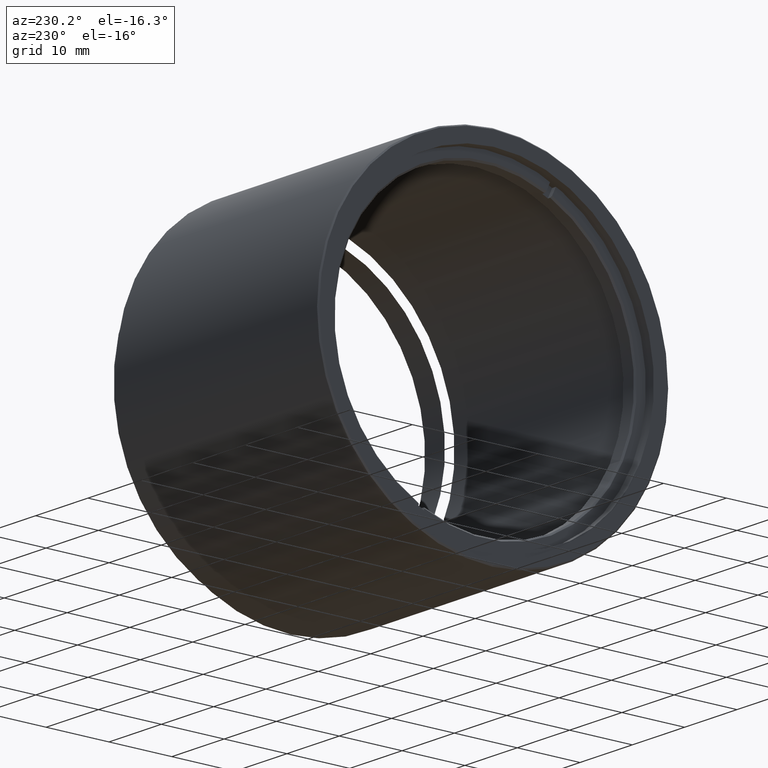
[diagram: clean part render]
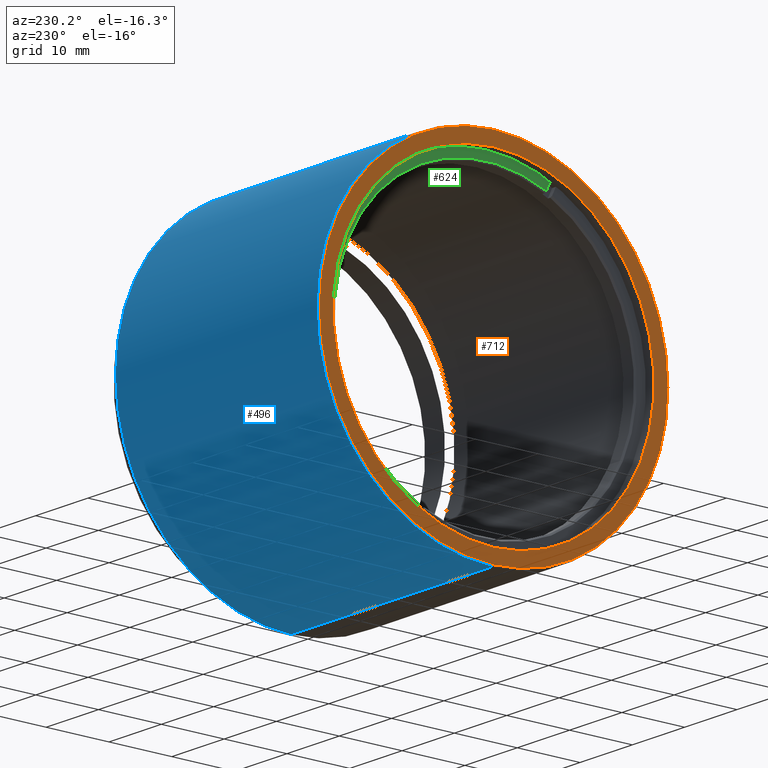
[diagram: same view with three faces highlighted in distinct colors, each labeled with its STEP entity id]
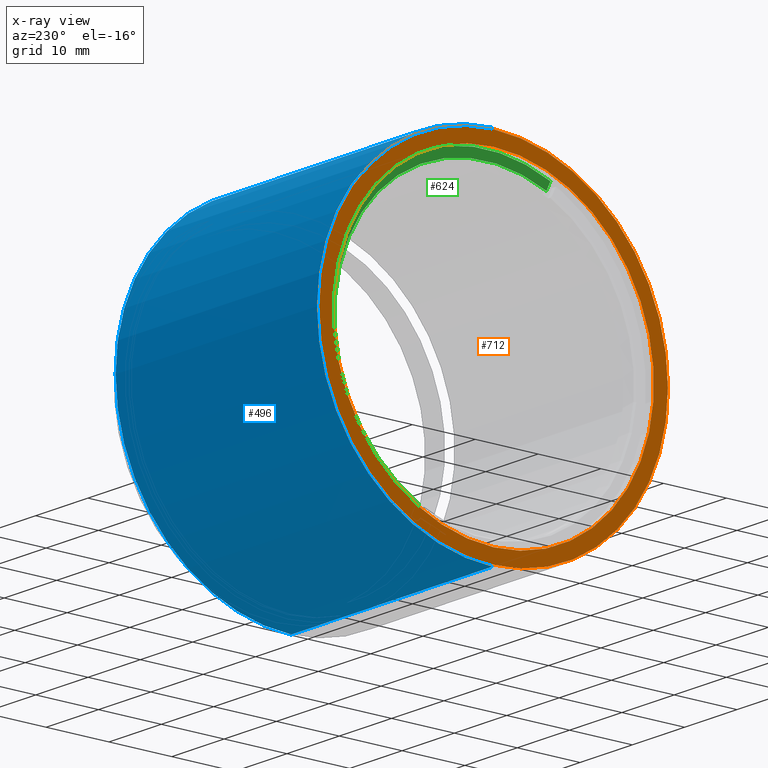
[diagram: x-ray of the same camera — body ghosted, the three highlighted faces saturated]
A machine part, auxiliary view with three faces highlighted in distinct colors.
The next image is the same camera in x-ray (body ghosted, the three faces saturated) — at least one of them is partly hidden behind the body in this view.
Their STEP definitions:

[orange] entity #712 — the highlighted planar face has unit normal (-1, 0, 0).
#18 = DIRECTION ( 'NONE',  ( -1.000000000000000000, 0.000000000000000000, 0.000000000000000000 ) ) ;
#67 = FACE_BOUND ( 'NONE', #795, .T. ) ;
#74 = PLANE ( 'NONE',  #1119 ) ;
#80 = CARTESIAN_POINT ( 'NONE',  ( -35.37400000000001654, -20.10857142857141966, 0.000000000000000000 ) ) ;
#110 = VERTEX_POINT ( 'NONE', #611 ) ;
#135 = CARTESIAN_POINT ( 'NONE',  ( -35.37400000000001654, -20.10857142857141966, -27.74999999999997868 ) ) ;
#221 = DIRECTION ( 'NONE',  ( 0.000000000000000000, 0.000000000000000000, 1.000000000000000000 ) ) ;
#289 = EDGE_CURVE ( 'NONE', #1065, #1176, #750, .T. ) ;
#337 = DIRECTION ( 'NONE',  ( -1.000000000000000000, 0.000000000000000000, 0.000000000000000000 ) ) ;
#373 = CARTESIAN_POINT ( 'NONE',  ( -35.37400000000001654, -20.10857142857141966, 0.000000000000000000 ) ) ;
#405 = CARTESIAN_POINT ( 'NONE',  ( -35.37400000000001654, -20.10857142857141611, 27.74999999999997868 ) ) ;
#453 = ORIENTED_EDGE ( 'NONE', *, *, #289, .T. ) ;
#592 = ORIENTED_EDGE ( 'NONE', *, *, #1210, .F. ) ;
#608 = DIRECTION ( 'NONE',  ( -1.000000000000000000, 0.000000000000000000, 0.000000000000000000 ) ) ;
#611 = CARTESIAN_POINT ( 'NONE',  ( -35.37400000000001654, -20.10857142857141966, -25.52499999999999858 ) ) ;
#657 = CIRCLE ( 'NONE', #1271, 27.74999999999997868 ) ;
#670 = CARTESIAN_POINT ( 'NONE',  ( -35.37400000000001654, -20.10857142857141966, 0.000000000000000000 ) ) ;
#705 = DIRECTION ( 'NONE',  ( -1.000000000000000000, 0.000000000000000000, 0.000000000000000000 ) ) ;
#712 = ADVANCED_FACE ( 'NONE', ( #1130, #67 ), #74, .T. ) ;
#750 = CIRCLE ( 'NONE', #897, 27.74999999999997868 ) ;
#756 = ORIENTED_EDGE ( 'NONE', *, *, #1358, .F. ) ;
#784 = DIRECTION ( 'NONE',  ( -1.000000000000000000, 0.000000000000000000, 0.000000000000000000 ) ) ;
#795 = EDGE_LOOP ( 'NONE', ( #756, #592 ) ) ;
#830 = CARTESIAN_POINT ( 'NONE',  ( -35.37400000000001654, -20.10857142857141966, 0.000000000000000000 ) ) ;
#858 = CIRCLE ( 'NONE', #1571, 25.52499999999999858 ) ;
#891 = DIRECTION ( 'NONE',  ( 0.000000000000000000, 0.000000000000000000, 1.000000000000000000 ) ) ;
#897 = AXIS2_PLACEMENT_3D ( 'NONE', #1023, #18, #891 ) ;
#961 = DIRECTION ( 'NONE',  ( 0.000000000000000000, 0.000000000000000000, 1.000000000000000000 ) ) ;
#964 = ORIENTED_EDGE ( 'NONE', *, *, #1396, .T. ) ;
#973 = DIRECTION ( 'NONE',  ( 0.000000000000000000, 0.000000000000000000, 1.000000000000000000 ) ) ;
#1023 = CARTESIAN_POINT ( 'NONE',  ( -35.37400000000001654, -20.10857142857141966, 0.000000000000000000 ) ) ;
#1034 = DIRECTION ( 'NONE',  ( 0.000000000000000000, 0.000000000000000000, 1.000000000000000000 ) ) ;
#1065 = VERTEX_POINT ( 'NONE', #405 ) ;
#1119 = AXIS2_PLACEMENT_3D ( 'NONE', #373, #608, #973 ) ;
#1130 = FACE_OUTER_BOUND ( 'NONE', #1457, .T. ) ;
#1134 = CARTESIAN_POINT ( 'NONE',  ( -35.37400000000001654, -20.10857142857141611, 25.52499999999999858 ) ) ;
#1176 = VERTEX_POINT ( 'NONE', #135 ) ;
#1192 = AXIS2_PLACEMENT_3D ( 'NONE', #830, #337, #961 ) ;
#1210 = EDGE_CURVE ( 'NONE', #1250, #110, #858, .T. ) ;
#1250 = VERTEX_POINT ( 'NONE', #1134 ) ;
#1271 = AXIS2_PLACEMENT_3D ( 'NONE', #80, #705, #221 ) ;
#1358 = EDGE_CURVE ( 'NONE', #110, #1250, #1518, .T. ) ;
#1396 = EDGE_CURVE ( 'NONE', #1176, #1065, #657, .T. ) ;
#1457 = EDGE_LOOP ( 'NONE', ( #964, #453 ) ) ;
#1518 = CIRCLE ( 'NONE', #1192, 25.52499999999999858 ) ;
#1571 = AXIS2_PLACEMENT_3D ( 'NONE', #670, #784, #1034 ) ;

[blue] entity #496 — the highlighted cylindrical surface (partial cylindrical patch) has radius 27.95 mm, axis along (-1, -0, -0).
#120 = CARTESIAN_POINT ( 'NONE',  ( 3.325999999999963208, -20.10857142857141966, 0.000000000000000000 ) ) ;
#124 = VECTOR ( 'NONE', #392, 1000.000000000000000 ) ;
#163 = AXIS2_PLACEMENT_3D ( 'NONE', #174, #672, #290 ) ;
#174 = CARTESIAN_POINT ( 'NONE',  ( -35.17399999999999949, -20.10857142857141966, 0.000000000000000000 ) ) ;
#187 = LINE ( 'NONE', #1360, #124 ) ;
#233 = EDGE_CURVE ( 'NONE', #1174, #1497, #1338, .T. ) ;
#253 = DIRECTION ( 'NONE',  ( -1.000000000000000000, -0.000000000000000000, -0.000000000000000000 ) ) ;
#286 = EDGE_LOOP ( 'NONE', ( #794, #410, #434, #719 ) ) ;
#290 = DIRECTION ( 'NONE',  ( 0.000000000000000000, 0.000000000000000000, 1.000000000000000000 ) ) ;
#376 = EDGE_CURVE ( 'NONE', #717, #1497, #1521, .T. ) ;
#383 = CIRCLE ( 'NONE', #1277, 27.94999999999999929 ) ;
#392 = DIRECTION ( 'NONE',  ( -1.000000000000000000, -0.000000000000000000, -0.000000000000000000 ) ) ;
#410 = ORIENTED_EDGE ( 'NONE', *, *, #929, .T. ) ;
#434 = ORIENTED_EDGE ( 'NONE', *, *, #376, .T. ) ;
#476 = CARTESIAN_POINT ( 'NONE',  ( -35.17399999999999949, -20.10857142857141966, -27.94999999999999929 ) ) ;
#496 = ADVANCED_FACE ( 'NONE', ( #1410 ), #1187, .T. ) ;
#578 = DIRECTION ( 'NONE',  ( 0.000000000000000000, 0.000000000000000000, 1.000000000000000000 ) ) ;
#672 = DIRECTION ( 'NONE',  ( 1.000000000000000000, 0.000000000000000000, 0.000000000000000000 ) ) ;
#717 = VERTEX_POINT ( 'NONE', #476 ) ;
#719 = ORIENTED_EDGE ( 'NONE', *, *, #233, .F. ) ;
#766 = EDGE_CURVE ( 'NONE', #1174, #1508, #383, .T. ) ;
#776 = CARTESIAN_POINT ( 'NONE',  ( 3.325999999999963208, -20.10857142857141966, 27.94999999999999929 ) ) ;
#794 = ORIENTED_EDGE ( 'NONE', *, *, #766, .T. ) ;
#916 = CARTESIAN_POINT ( 'NONE',  ( 3.525999999999982926, -20.10857142857141966, 0.000000000000000000 ) ) ;
#929 = EDGE_CURVE ( 'NONE', #1508, #717, #187, .T. ) ;
#1021 = VECTOR ( 'NONE', #253, 1000.000000000000000 ) ;
#1072 = AXIS2_PLACEMENT_3D ( 'NONE', #916, #1180, #578 ) ;
#1098 = DIRECTION ( 'NONE',  ( -1.000000000000000000, 0.000000000000000000, 0.000000000000000000 ) ) ;
#1174 = VERTEX_POINT ( 'NONE', #776 ) ;
#1180 = DIRECTION ( 'NONE',  ( -1.000000000000000000, -0.000000000000000000, -0.000000000000000000 ) ) ;
#1187 = CYLINDRICAL_SURFACE ( 'NONE', #1072, 27.94999999999999929 ) ;
#1236 = CARTESIAN_POINT ( 'NONE',  ( 3.325999999999963208, -20.10857142857141611, -27.94999999999999929 ) ) ;
#1277 = AXIS2_PLACEMENT_3D ( 'NONE', #120, #1098, #1337 ) ;
#1337 = DIRECTION ( 'NONE',  ( 0.000000000000000000, 0.000000000000000000, -1.000000000000000000 ) ) ;
#1338 = LINE ( 'NONE', #1356, #1021 ) ;
#1356 = CARTESIAN_POINT ( 'NONE',  ( 3.525999999999982926, -20.10857142857141966, 27.94999999999999929 ) ) ;
#1360 = CARTESIAN_POINT ( 'NONE',  ( 3.525999999999982926, -20.10857142857141611, -27.94999999999999929 ) ) ;
#1410 = FACE_OUTER_BOUND ( 'NONE', #286, .T. ) ;
#1497 = VERTEX_POINT ( 'NONE', #1570 ) ;
#1508 = VERTEX_POINT ( 'NONE', #1236 ) ;
#1521 = CIRCLE ( 'NONE', #163, 27.94999999999999929 ) ;
#1570 = CARTESIAN_POINT ( 'NONE',  ( -35.17399999999999949, -20.10857142857141611, 27.94999999999999929 ) ) ;

[green] entity #624 — the highlighted planar face has unit normal (-1, -0, 0).
#157 = ORIENTED_EDGE ( 'NONE', *, *, #639, .T. ) ;
#292 = CARTESIAN_POINT ( 'NONE',  ( -33.83165401841768727, -30.44168216331061316, 23.41591879029343914 ) ) ;
#343 = EDGE_CURVE ( 'NONE', #1270, #953, #928, .T. ) ;
#365 = VERTEX_POINT ( 'NONE', #1043 ) ;
#367 = CARTESIAN_POINT ( 'NONE',  ( -33.83165401841768727, -63.91470274021177289, 95.42679319513629821 ) ) ;
#380 = AXIS2_PLACEMENT_3D ( 'NONE', #1423, #1537, #1089 ) ;
#469 = DIRECTION ( 'NONE',  ( 1.000000000000000000, -0.000000000000000000, -0.000000000000000000 ) ) ;
#491 = LINE ( 'NONE', #367, #999 ) ;
#536 = DIRECTION ( 'NONE',  ( 0.000000000000000000, -0.9068193664391737130, -0.4215194380462846668 ) ) ;
#624 = ADVANCED_FACE ( 'NONE', ( #625 ), #1197, .T. ) ;
#625 = FACE_OUTER_BOUND ( 'NONE', #1439, .T. ) ;
#639 = EDGE_CURVE ( 'NONE', #1285, #365, #1017, .T. ) ;
#706 = CARTESIAN_POINT ( 'NONE',  ( -33.83165401841768727, -20.10857142857142321, -7.792703114739563119E-16 ) ) ;
#788 = EDGE_CURVE ( 'NONE', #1285, #953, #491, .T. ) ;
#819 = DIRECTION ( 'NONE',  ( 0.000000000000000000, -0.9068193664391737130, -0.4215194380462846113 ) ) ;
#856 = DIRECTION ( 'NONE',  ( 0.000000000000000000, 0.4215194380462845003, -0.9068193664391737130 ) ) ;
#893 = CARTESIAN_POINT ( 'NONE',  ( -33.83165401841768727, -8.868641327393142149, -22.99439935224720344 ) ) ;
#928 = CIRCLE ( 'NONE', #994, 25.59450000000000358 ) ;
#937 = VECTOR ( 'NONE', #856, 1000.000000000000227 ) ;
#953 = VERTEX_POINT ( 'NONE', #893 ) ;
#994 = AXIS2_PLACEMENT_3D ( 'NONE', #1114, #1252, #536 ) ;
#999 = VECTOR ( 'NONE', #1231, 1000.000000000000227 ) ;
#1017 = CIRCLE ( 'NONE', #1476, 24.09450000000000358 ) ;
#1043 = CARTESIAN_POINT ( 'NONE',  ( -33.83165401841768727, -29.80927480667949681, 22.05541394351877216 ) ) ;
#1089 = DIRECTION ( 'NONE',  ( 0.000000000000000000, -0.9068193664391738240, -0.4215194380462846668 ) ) ;
#1114 = CARTESIAN_POINT ( 'NONE',  ( -33.83165401841768727, -20.10857142857142321, -7.792703114739563119E-16 ) ) ;
#1178 = ORIENTED_EDGE ( 'NONE', *, *, #343, .T. ) ;
#1179 = CARTESIAN_POINT ( 'NONE',  ( -33.83165401841768727, -9.501048684024262059, -21.63389450547253645 ) ) ;
#1197 = PLANE ( 'NONE',  #380 ) ;
#1231 = DIRECTION ( 'NONE',  ( 0.000000000000000000, 0.4215194380462845003, -0.9068193664391737130 ) ) ;
#1252 = DIRECTION ( 'NONE',  ( -1.000000000000000000, 0.000000000000000000, 0.000000000000000000 ) ) ;
#1270 = VERTEX_POINT ( 'NONE', #292 ) ;
#1284 = ORIENTED_EDGE ( 'NONE', *, *, #788, .F. ) ;
#1285 = VERTEX_POINT ( 'NONE', #1179 ) ;
#1336 = CARTESIAN_POINT ( 'NONE',  ( -33.83165401841768727, -63.91470274021177289, 95.42679319513629821 ) ) ;
#1380 = ORIENTED_EDGE ( 'NONE', *, *, #1516, .F. ) ;
#1423 = CARTESIAN_POINT ( 'NONE',  ( -33.83165401841768727, -20.10857142857142321, -7.792703114739563119E-16 ) ) ;
#1424 = LINE ( 'NONE', #1336, #937 ) ;
#1439 = EDGE_LOOP ( 'NONE', ( #1380, #1178, #1284, #157 ) ) ;
#1476 = AXIS2_PLACEMENT_3D ( 'NONE', #706, #469, #819 ) ;
#1516 = EDGE_CURVE ( 'NONE', #1270, #365, #1424, .T. ) ;
#1537 = DIRECTION ( 'NONE',  ( -1.000000000000000000, -0.000000000000000000, 0.000000000000000000 ) ) ;